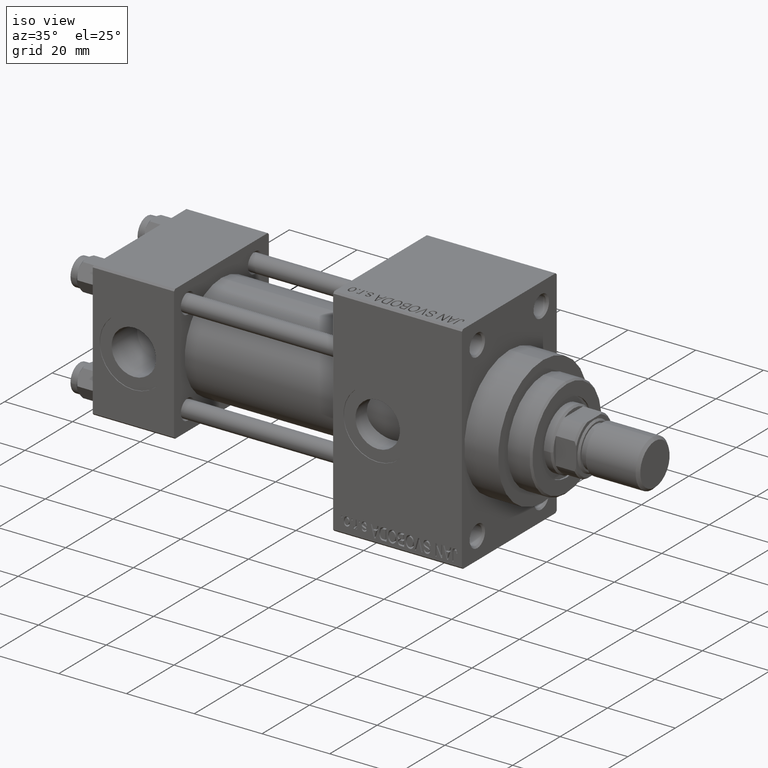
[diagram: clean part render]
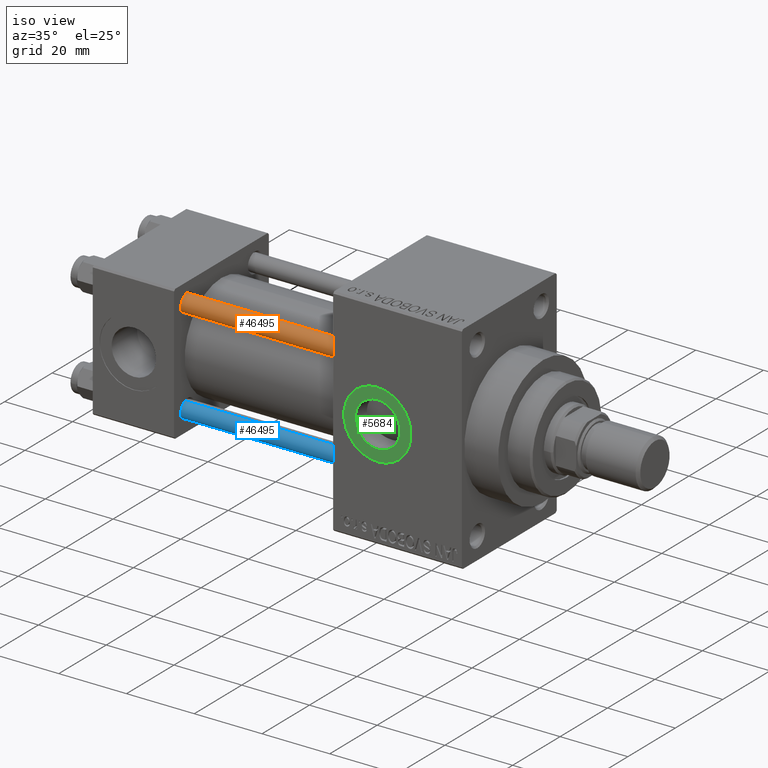
[diagram: same view with three faces highlighted in distinct colors, each labeled with its STEP entity id]
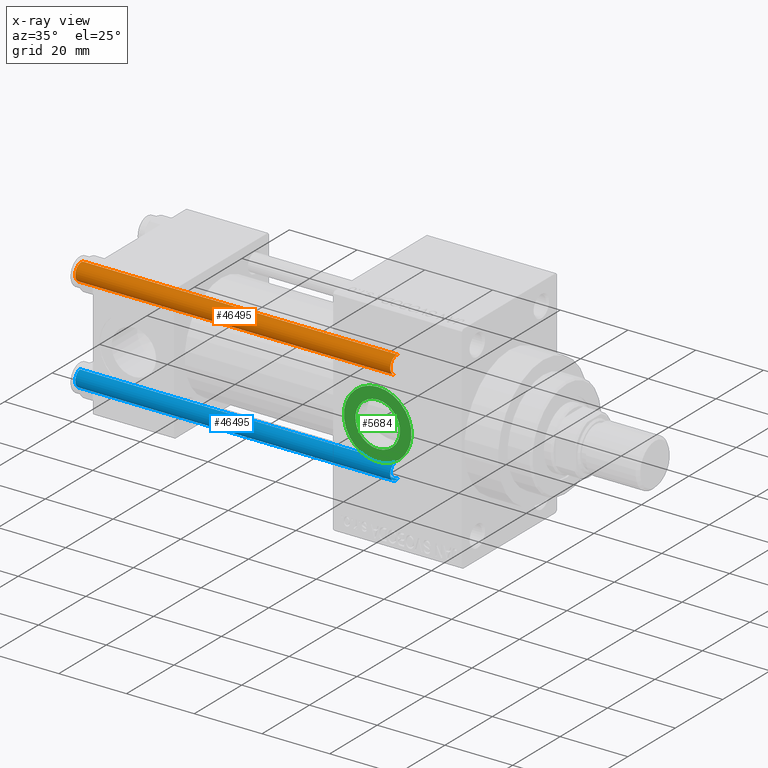
[diagram: x-ray of the same camera — body ghosted, the three highlighted faces saturated]
A machine part, iso view with three faces highlighted in distinct colors.
The next image is the same camera in x-ray (body ghosted, the three faces saturated) — at least one of them is partly hidden behind the body in this view.
Their STEP definitions:

[orange] entity #46495 — the highlighted cylindrical surface (edge-blend (fillet) strip) has radius 2.5 mm, axis along (1, 0, 0).
#208 = EDGE_CURVE ( 'NONE', #45043, #40505, #11259, .T. ) ;
#620 = AXIS2_PLACEMENT_3D ( 'NONE', #18391, #43827, #3009 ) ;
#3009 = DIRECTION ( 'NONE',  ( -1.000000000000000000, 0.000000000000000000, 0.000000000000000000 ) ) ;
#4136 = CARTESIAN_POINT ( 'NONE',  ( 0.000000000000000000, 0.000000000000000000, 0.5000000000000004441 ) ) ;
#6706 = CARTESIAN_POINT ( 'NONE',  ( -2.500000000000000000, 0.000000000000000000, 93.50000000000001421 ) ) ;
#8377 = EDGE_CURVE ( 'NONE', #40505, #12735, #34914, .T. ) ;
#8688 = VERTEX_POINT ( 'NONE', #36923 ) ;
#9071 = EDGE_CURVE ( 'NONE', #45043, #8688, #38037, .T. ) ;
#9966 = CARTESIAN_POINT ( 'NONE',  ( 2.500000000000000000, 3.061616997868383141E-16, 0.5000000000000004441 ) ) ;
#10339 = DIRECTION ( 'NONE',  ( -0.000000000000000000, -0.000000000000000000, -1.000000000000000000 ) ) ;
#11259 = CIRCLE ( 'NONE', #18161, 2.500000000000000000 ) ;
#11825 = CARTESIAN_POINT ( 'NONE',  ( 0.000000000000000000, 0.000000000000000000, 93.50000000000001421 ) ) ;
#12735 = VERTEX_POINT ( 'NONE', #9966 ) ;
#13967 = ORIENTED_EDGE ( 'NONE', *, *, #14068, .T. ) ;
#14068 = EDGE_CURVE ( 'NONE', #12735, #8688, #18748, .T. ) ;
#14815 = VECTOR ( 'NONE', #10339, 1000.000000000000000 ) ;
#15979 = DIRECTION ( 'NONE',  ( -0.000000000000000000, -0.000000000000000000, -1.000000000000000000 ) ) ;
#16384 = VECTOR ( 'NONE', #15979, 1000.000000000000000 ) ;
#18161 = AXIS2_PLACEMENT_3D ( 'NONE', #11825, #18345, #44512 ) ;
#18345 = DIRECTION ( 'NONE',  ( 0.000000000000000000, 0.000000000000000000, -1.000000000000000000 ) ) ;
#18391 = CARTESIAN_POINT ( 'NONE',  ( 0.000000000000000000, 0.000000000000000000, 94.00000000000000000 ) ) ;
#18748 = CIRCLE ( 'NONE', #19478, 2.500000000000000000 ) ;
#19030 = DIRECTION ( 'NONE',  ( 1.000000000000000000, 0.000000000000000000, 0.000000000000000000 ) ) ;
#19478 = AXIS2_PLACEMENT_3D ( 'NONE', #4136, #29601, #19030 ) ;
#21974 = CYLINDRICAL_SURFACE ( 'NONE', #620, 2.500000000000000000 ) ;
#27088 = EDGE_LOOP ( 'NONE', ( #39656, #28626, #13967, #44027 ) ) ;
#28626 = ORIENTED_EDGE ( 'NONE', *, *, #8377, .T. ) ;
#28835 = CARTESIAN_POINT ( 'NONE',  ( 2.500000000000000000, 3.061616997868383141E-16, 94.00000000000000000 ) ) ;
#29601 = DIRECTION ( 'NONE',  ( -0.000000000000000000, -0.000000000000000000, 1.000000000000000000 ) ) ;
#34914 = LINE ( 'NONE', #28835, #14815 ) ;
#36923 = CARTESIAN_POINT ( 'NONE',  ( -2.500000000000000000, 0.000000000000000000, 0.5000000000000004441 ) ) ;
#38037 = LINE ( 'NONE', #41881, #16384 ) ;
#38456 = CARTESIAN_POINT ( 'NONE',  ( 2.500000000000000000, 3.061616997868383141E-16, 93.50000000000001421 ) ) ;
#39656 = ORIENTED_EDGE ( 'NONE', *, *, #208, .T. ) ;
#39960 = FACE_OUTER_BOUND ( 'NONE', #27088, .T. ) ;
#40505 = VERTEX_POINT ( 'NONE', #38456 ) ;
#41881 = CARTESIAN_POINT ( 'NONE',  ( -2.500000000000000000, 0.000000000000000000, 94.00000000000000000 ) ) ;
#43827 = DIRECTION ( 'NONE',  ( -0.000000000000000000, -0.000000000000000000, -1.000000000000000000 ) ) ;
#44027 = ORIENTED_EDGE ( 'NONE', *, *, #9071, .F. ) ;
#44512 = DIRECTION ( 'NONE',  ( 1.000000000000000000, 0.000000000000000000, 0.000000000000000000 ) ) ;
#45043 = VERTEX_POINT ( 'NONE', #6706 ) ;
#46495 = ADVANCED_FACE ( 'NONE', ( #39960 ), #21974, .T. ) ;

[blue] entity #46495 — the highlighted cylindrical surface (edge-blend (fillet) strip) has radius 2.5 mm, axis along (-1, 0, 0).
#208 = EDGE_CURVE ( 'NONE', #45043, #40505, #11259, .T. ) ;
#620 = AXIS2_PLACEMENT_3D ( 'NONE', #18391, #43827, #3009 ) ;
#3009 = DIRECTION ( 'NONE',  ( -1.000000000000000000, 0.000000000000000000, 0.000000000000000000 ) ) ;
#4136 = CARTESIAN_POINT ( 'NONE',  ( 0.000000000000000000, 0.000000000000000000, 0.5000000000000004441 ) ) ;
#6706 = CARTESIAN_POINT ( 'NONE',  ( -2.500000000000000000, 0.000000000000000000, 93.50000000000001421 ) ) ;
#8377 = EDGE_CURVE ( 'NONE', #40505, #12735, #34914, .T. ) ;
#8688 = VERTEX_POINT ( 'NONE', #36923 ) ;
#9071 = EDGE_CURVE ( 'NONE', #45043, #8688, #38037, .T. ) ;
#9966 = CARTESIAN_POINT ( 'NONE',  ( 2.500000000000000000, 3.061616997868383141E-16, 0.5000000000000004441 ) ) ;
#10339 = DIRECTION ( 'NONE',  ( -0.000000000000000000, -0.000000000000000000, -1.000000000000000000 ) ) ;
#11259 = CIRCLE ( 'NONE', #18161, 2.500000000000000000 ) ;
#11825 = CARTESIAN_POINT ( 'NONE',  ( 0.000000000000000000, 0.000000000000000000, 93.50000000000001421 ) ) ;
#12735 = VERTEX_POINT ( 'NONE', #9966 ) ;
#13967 = ORIENTED_EDGE ( 'NONE', *, *, #14068, .T. ) ;
#14068 = EDGE_CURVE ( 'NONE', #12735, #8688, #18748, .T. ) ;
#14815 = VECTOR ( 'NONE', #10339, 1000.000000000000000 ) ;
#15979 = DIRECTION ( 'NONE',  ( -0.000000000000000000, -0.000000000000000000, -1.000000000000000000 ) ) ;
#16384 = VECTOR ( 'NONE', #15979, 1000.000000000000000 ) ;
#18161 = AXIS2_PLACEMENT_3D ( 'NONE', #11825, #18345, #44512 ) ;
#18345 = DIRECTION ( 'NONE',  ( 0.000000000000000000, 0.000000000000000000, -1.000000000000000000 ) ) ;
#18391 = CARTESIAN_POINT ( 'NONE',  ( 0.000000000000000000, 0.000000000000000000, 94.00000000000000000 ) ) ;
#18748 = CIRCLE ( 'NONE', #19478, 2.500000000000000000 ) ;
#19030 = DIRECTION ( 'NONE',  ( 1.000000000000000000, 0.000000000000000000, 0.000000000000000000 ) ) ;
#19478 = AXIS2_PLACEMENT_3D ( 'NONE', #4136, #29601, #19030 ) ;
#21974 = CYLINDRICAL_SURFACE ( 'NONE', #620, 2.500000000000000000 ) ;
#27088 = EDGE_LOOP ( 'NONE', ( #39656, #28626, #13967, #44027 ) ) ;
#28626 = ORIENTED_EDGE ( 'NONE', *, *, #8377, .T. ) ;
#28835 = CARTESIAN_POINT ( 'NONE',  ( 2.500000000000000000, 3.061616997868383141E-16, 94.00000000000000000 ) ) ;
#29601 = DIRECTION ( 'NONE',  ( -0.000000000000000000, -0.000000000000000000, 1.000000000000000000 ) ) ;
#34914 = LINE ( 'NONE', #28835, #14815 ) ;
#36923 = CARTESIAN_POINT ( 'NONE',  ( -2.500000000000000000, 0.000000000000000000, 0.5000000000000004441 ) ) ;
#38037 = LINE ( 'NONE', #41881, #16384 ) ;
#38456 = CARTESIAN_POINT ( 'NONE',  ( 2.500000000000000000, 3.061616997868383141E-16, 93.50000000000001421 ) ) ;
#39656 = ORIENTED_EDGE ( 'NONE', *, *, #208, .T. ) ;
#39960 = FACE_OUTER_BOUND ( 'NONE', #27088, .T. ) ;
#40505 = VERTEX_POINT ( 'NONE', #38456 ) ;
#41881 = CARTESIAN_POINT ( 'NONE',  ( -2.500000000000000000, 0.000000000000000000, 94.00000000000000000 ) ) ;
#43827 = DIRECTION ( 'NONE',  ( -0.000000000000000000, -0.000000000000000000, -1.000000000000000000 ) ) ;
#44027 = ORIENTED_EDGE ( 'NONE', *, *, #9071, .F. ) ;
#44512 = DIRECTION ( 'NONE',  ( 1.000000000000000000, 0.000000000000000000, 0.000000000000000000 ) ) ;
#45043 = VERTEX_POINT ( 'NONE', #6706 ) ;
#46495 = ADVANCED_FACE ( 'NONE', ( #39960 ), #21974, .T. ) ;

[green] entity #5684 — the highlighted planar face has unit normal (0, -1, -0).
#782 = DIRECTION ( 'NONE',  ( 0.000000000000000000, 0.000000000000000000, -1.000000000000000000 ) ) ;
#1981 = DIRECTION ( 'NONE',  ( 0.000000000000000000, -1.000000000000000000, -8.673617379884036705E-17 ) ) ;
#3505 = ORIENTED_EDGE ( 'NONE', *, *, #16044, .F. ) ;
#4444 = AXIS2_PLACEMENT_3D ( 'NONE', #7959, #29599, #782 ) ;
#5228 = EDGE_LOOP ( 'NONE', ( #3505, #14218 ) ) ;
#5334 = DIRECTION ( 'NONE',  ( 0.000000000000000000, 0.000000000000000000, -1.000000000000000000 ) ) ;
#5684 = ADVANCED_FACE ( 'NONE', ( #9694, #46683 ), #20973, .T. ) ;
#6102 = DIRECTION ( 'NONE',  ( 0.000000000000000000, 8.673617379884036705E-17, -1.000000000000000000 ) ) ;
#7959 = CARTESIAN_POINT ( 'NONE',  ( 84.00000000000000000, -19.80000000000000071, 1.734723475976807403E-17 ) ) ;
#9694 = FACE_BOUND ( 'NONE', #5228, .T. ) ;
#11780 = CARTESIAN_POINT ( 'NONE',  ( 84.00000000000000000, -19.80000000000000071, 6.580000000000000071 ) ) ;
#12641 = CIRCLE ( 'NONE', #18782, 6.580000000000001847 ) ;
#13275 = CARTESIAN_POINT ( 'NONE',  ( 84.00000000000000000, -19.80000000000000071, 9.999999999999994671 ) ) ;
#13634 = CIRCLE ( 'NONE', #28089, 6.580000000000001847 ) ;
#13939 = AXIS2_PLACEMENT_3D ( 'NONE', #39206, #35610, #6102 ) ;
#14218 = ORIENTED_EDGE ( 'NONE', *, *, #23559, .F. ) ;
#14379 = DIRECTION ( 'NONE',  ( 0.000000000000000000, 0.000000000000000000, -1.000000000000000000 ) ) ;
#14984 = AXIS2_PLACEMENT_3D ( 'NONE', #31277, #1981, #5334 ) ;
#15621 = VERTEX_POINT ( 'NONE', #13275 ) ;
#16044 = EDGE_CURVE ( 'NONE', #33521, #40701, #12641, .T. ) ;
#18782 = AXIS2_PLACEMENT_3D ( 'NONE', #36956, #43213, #40075 ) ;
#20295 = EDGE_LOOP ( 'NONE', ( #28120, #22089 ) ) ;
#20553 = CIRCLE ( 'NONE', #4444, 9.999999999999994671 ) ;
#20973 = PLANE ( 'NONE',  #13939 ) ;
#22089 = ORIENTED_EDGE ( 'NONE', *, *, #40529, .T. ) ;
#23559 = EDGE_CURVE ( 'NONE', #40701, #33521, #13634, .T. ) ;
#28089 = AXIS2_PLACEMENT_3D ( 'NONE', #39808, #46566, #14379 ) ;
#28120 = ORIENTED_EDGE ( 'NONE', *, *, #46956, .T. ) ;
#29590 = CARTESIAN_POINT ( 'NONE',  ( 84.00000000000000000, -19.80000000000000071, -9.999999999999994671 ) ) ;
#29599 = DIRECTION ( 'NONE',  ( 0.000000000000000000, -1.000000000000000000, -8.673617379884036705E-17 ) ) ;
#31277 = CARTESIAN_POINT ( 'NONE',  ( 84.00000000000000000, -19.80000000000000071, 1.734723475976807403E-17 ) ) ;
#33521 = VERTEX_POINT ( 'NONE', #45573 ) ;
#34898 = CIRCLE ( 'NONE', #14984, 9.999999999999994671 ) ;
#35610 = DIRECTION ( 'NONE',  ( 0.000000000000000000, -1.000000000000000000, -8.673617379884036705E-17 ) ) ;
#35839 = VERTEX_POINT ( 'NONE', #29590 ) ;
#36956 = CARTESIAN_POINT ( 'NONE',  ( 84.00000000000000000, -19.80000000000000071, -1.717376241217039418E-15 ) ) ;
#39206 = CARTESIAN_POINT ( 'NONE',  ( 84.00000000000000000, -19.80000000000000071, 1.734723475976807403E-17 ) ) ;
#39808 = CARTESIAN_POINT ( 'NONE',  ( 84.00000000000000000, -19.80000000000000071, -1.717376241217039418E-15 ) ) ;
#40075 = DIRECTION ( 'NONE',  ( 0.000000000000000000, 0.000000000000000000, -1.000000000000000000 ) ) ;
#40529 = EDGE_CURVE ( 'NONE', #15621, #35839, #34898, .T. ) ;
#40701 = VERTEX_POINT ( 'NONE', #11780 ) ;
#43213 = DIRECTION ( 'NONE',  ( 0.000000000000000000, -1.000000000000000000, -8.673617379884036705E-17 ) ) ;
#45573 = CARTESIAN_POINT ( 'NONE',  ( 84.00000000000000000, -19.80000000000000071, -6.580000000000003624 ) ) ;
#46566 = DIRECTION ( 'NONE',  ( 0.000000000000000000, -1.000000000000000000, -8.673617379884036705E-17 ) ) ;
#46683 = FACE_OUTER_BOUND ( 'NONE', #20295, .T. ) ;
#46956 = EDGE_CURVE ( 'NONE', #35839, #15621, #20553, .T. ) ;